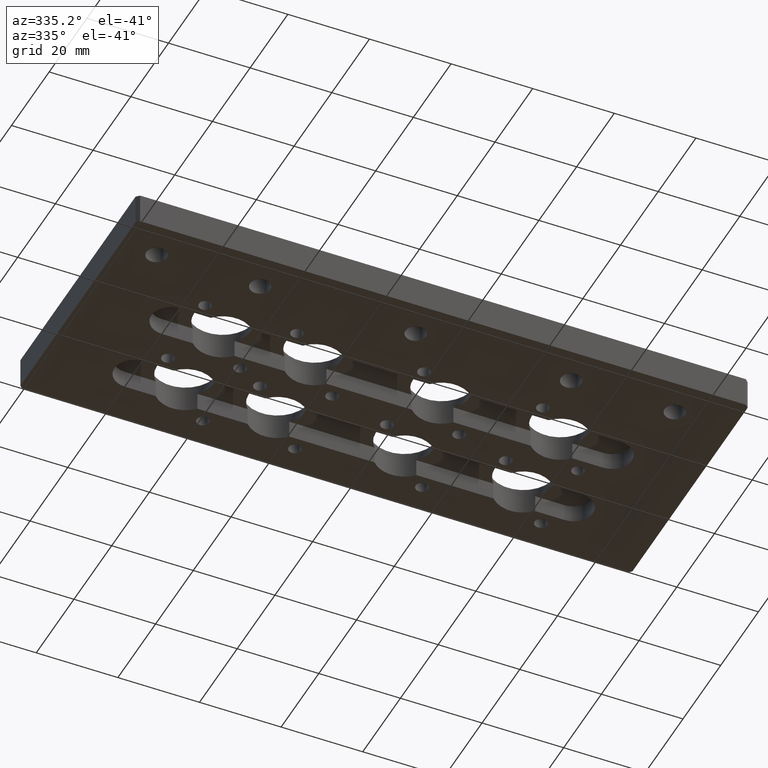
[diagram: clean part render]
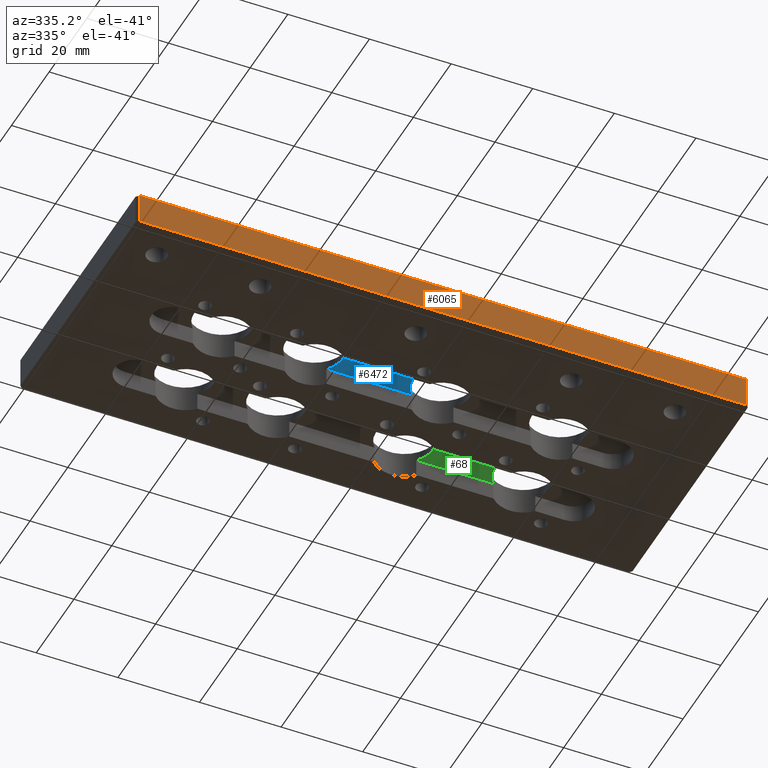
[diagram: same view with three faces highlighted in distinct colors, each labeled with its STEP entity id]
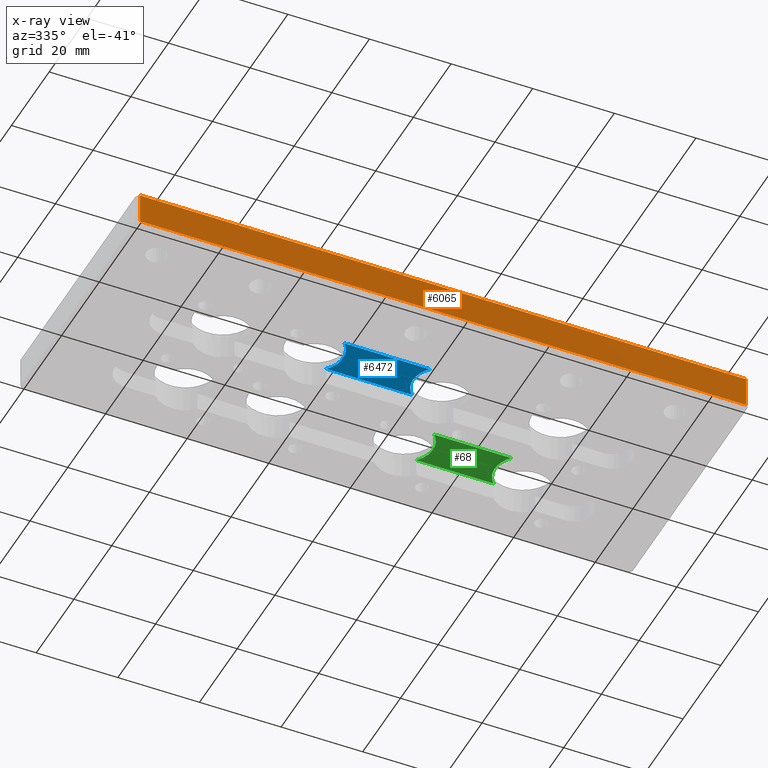
[diagram: x-ray of the same camera — body ghosted, the three highlighted faces saturated]
A machine part, auxiliary view with three faces highlighted in distinct colors.
The next image is the same camera in x-ray (body ghosted, the three faces saturated) — at least one of them is partly hidden behind the body in this view.
Their STEP definitions:

[orange] entity #6065 — the highlighted planar face has unit normal (-0, -1, 0).
#18 = CARTESIAN_POINT ( 'NONE',  ( 5.874993993654027400, -2.903011691320257200E-017, 0.0000000000000000000 ) ) ;
#383 = DIRECTION ( 'NONE',  ( -1.000000000000000000, 9.933316309051350500E-018, 0.0000000000000000000 ) ) ;
#646 = FACE_OUTER_BOUND ( 'NONE', #6373, .T. ) ;
#709 = VERTEX_POINT ( 'NONE', #6039 ) ;
#725 = CARTESIAN_POINT ( 'NONE',  ( 0.02999399365402927900, -5.173394818196502000E-016, 0.2970000000000000400 ) ) ;
#839 = DIRECTION ( 'NONE',  ( 0.0000000000000000000, 0.0000000000000000000, 1.000000000000000000 ) ) ;
#1080 = LINE ( 'NONE', #4431, #5553 ) ;
#1577 = DIRECTION ( 'NONE',  ( 0.0000000000000000000, 0.0000000000000000000, -1.000000000000000000 ) ) ;
#1750 = EDGE_CURVE ( 'NONE', #2743, #709, #3675, .T. ) ;
#1758 = DIRECTION ( 'NONE',  ( -9.933316309051350500E-018, -1.000000000000000000, 0.0000000000000000000 ) ) ;
#1977 = VECTOR ( 'NONE', #839, 39.37007874015748100 ) ;
#2113 = ORIENTED_EDGE ( 'NONE', *, *, #7442, .T. ) ;
#2490 = VERTEX_POINT ( 'NONE', #4493 ) ;
#2554 = CARTESIAN_POINT ( 'NONE',  ( 5.874993993654027400, -2.903011691320257200E-017, 0.2970000000000000400 ) ) ;
#2567 = LINE ( 'NONE', #7378, #3946 ) ;
#2743 = VERTEX_POINT ( 'NONE', #18 ) ;
#2799 = AXIS2_PLACEMENT_3D ( 'NONE', #7538, #1758, #5821 ) ;
#2859 = PLANE ( 'NONE',  #2799 ) ;
#3675 = LINE ( 'NONE', #3849, #5259 ) ;
#3849 = CARTESIAN_POINT ( 'NONE',  ( 5.904993993654027700, -2.932811640247411800E-017, -0.0000000000000000000 ) ) ;
#3946 = VECTOR ( 'NONE', #1577, 39.37007874015748100 ) ;
#4431 = CARTESIAN_POINT ( 'NONE',  ( 5.904993993654027700, -2.932811640247411800E-017, 0.2970000000000000400 ) ) ;
#4449 = DIRECTION ( 'NONE',  ( -1.000000000000000000, 9.933316309051350500E-018, 0.0000000000000000000 ) ) ;
#4493 = CARTESIAN_POINT ( 'NONE',  ( 5.874993993654027400, -3.372336466205313500E-017, 0.2970000000000000400 ) ) ;
#4675 = ORIENTED_EDGE ( 'NONE', *, *, #1750, .F. ) ;
#4718 = EDGE_CURVE ( 'NONE', #2743, #2490, #6613, .T. ) ;
#4936 = VERTEX_POINT ( 'NONE', #725 ) ;
#5219 = EDGE_CURVE ( 'NONE', #4936, #709, #2567, .T. ) ;
#5259 = VECTOR ( 'NONE', #4449, 39.37007874015748100 ) ;
#5553 = VECTOR ( 'NONE', #383, 39.37007874015748100 ) ;
#5821 = DIRECTION ( 'NONE',  ( 1.000000000000000000, -9.933316309051350500E-018, 0.0000000000000000000 ) ) ;
#5951 = ORIENTED_EDGE ( 'NONE', *, *, #5219, .T. ) ;
#6039 = CARTESIAN_POINT ( 'NONE',  ( 0.02999399365402927900, -5.179818746834250400E-016, 0.0000000000000000000 ) ) ;
#6065 = ADVANCED_FACE ( 'NONE', ( #646 ), #2859, .T. ) ;
#6373 = EDGE_LOOP ( 'NONE', ( #2113, #5951, #4675, #6427 ) ) ;
#6427 = ORIENTED_EDGE ( 'NONE', *, *, #4718, .T. ) ;
#6613 = LINE ( 'NONE', #2554, #1977 ) ;
#7378 = CARTESIAN_POINT ( 'NONE',  ( 0.02999399365402763800, 2.903011691320256500E-017, 0.2970000000000000400 ) ) ;
#7442 = EDGE_CURVE ( 'NONE', #2490, #4936, #1080, .T. ) ;
#7538 = CARTESIAN_POINT ( 'NONE',  ( 5.904993993654027700, -2.932811640247411800E-017, 0.2970000000000000400 ) ) ;

[blue] entity #6472 — the highlighted planar face has unit normal (0, 0, 1).
#100 = ORIENTED_EDGE ( 'NONE', *, *, #3492, .T. ) ;
#102 = VECTOR ( 'NONE', #1905, 39.37007874015748100 ) ;
#164 = DIRECTION ( 'NONE',  ( -0.0000000000000000000, -0.0000000000000000000, -1.000000000000000000 ) ) ;
#291 = AXIS2_PLACEMENT_3D ( 'NONE', #2079, #6150, #2642 ) ;
#323 = CARTESIAN_POINT ( 'NONE',  ( 2.421700926048729200, 1.286189792927657600, 0.1720000000000002400 ) ) ;
#464 = VERTEX_POINT ( 'NONE', #599 ) ;
#599 = CARTESIAN_POINT ( 'NONE',  ( 3.244683648113988000, 0.9111897929276581200, 0.1720000000000002400 ) ) ;
#884 = FACE_OUTER_BOUND ( 'NONE', #6133, .T. ) ;
#965 = CARTESIAN_POINT ( 'NONE',  ( 2.421700926048729200, 0.9111897929276581200, 0.1720000000000002400 ) ) ;
#966 = VECTOR ( 'NONE', #1470, 39.37007874015748100 ) ;
#1090 = PLANE ( 'NONE',  #7216 ) ;
#1134 = VERTEX_POINT ( 'NONE', #965 ) ;
#1306 = AXIS2_PLACEMENT_3D ( 'NONE', #6443, #2906, #7013 ) ;
#1470 = DIRECTION ( 'NONE',  ( 1.000000000000000000, -0.0000000000000000000, 0.0000000000000000000 ) ) ;
#1681 = DIRECTION ( 'NONE',  ( 0.0000000000000000000, 0.0000000000000000000, 1.000000000000000000 ) ) ;
#1691 = EDGE_CURVE ( 'NONE', #3617, #4003, #5979, .T. ) ;
#1905 = DIRECTION ( 'NONE',  ( -1.000000000000000000, 0.0000000000000000000, 0.0000000000000000000 ) ) ;
#1918 = CIRCLE ( 'NONE', #2935, 0.2750000000000001900 ) ;
#2013 = ORIENTED_EDGE ( 'NONE', *, *, #4058, .F. ) ;
#2079 = CARTESIAN_POINT ( 'NONE',  ( 3.445852109856876000, 1.098689792927658700, 0.1720000000000000400 ) ) ;
#2103 = VERTEX_POINT ( 'NONE', #6687 ) ;
#2486 = ORIENTED_EDGE ( 'NONE', *, *, #1691, .T. ) ;
#2642 = DIRECTION ( 'NONE',  ( 1.000000000000000000, 3.476897446481786700E-015, 0.0000000000000000000 ) ) ;
#2689 = CARTESIAN_POINT ( 'NONE',  ( 2.220532464305840400, 1.098689792927657800, 0.1720000000000000400 ) ) ;
#2795 = CARTESIAN_POINT ( 'NONE',  ( 2.220532464305840400, 1.098689792927657800, 0.1720000000000000400 ) ) ;
#2906 = DIRECTION ( 'NONE',  ( -0.0000000000000000000, -0.0000000000000000000, -1.000000000000000000 ) ) ;
#2935 = AXIS2_PLACEMENT_3D ( 'NONE', #2689, #6778, #3263 ) ;
#3263 = DIRECTION ( 'NONE',  ( 1.000000000000000000, 9.933992704233677100E-016, 0.0000000000000000000 ) ) ;
#3492 = EDGE_CURVE ( 'NONE', #464, #1134, #6112, .T. ) ;
#3558 = CARTESIAN_POINT ( 'NONE',  ( 3.244683648113986200, 1.286189792927657600, 0.1720000000000002400 ) ) ;
#3615 = EDGE_CURVE ( 'NONE', #4446, #4003, #7019, .T. ) ;
#3617 = VERTEX_POINT ( 'NONE', #323 ) ;
#3627 = CARTESIAN_POINT ( 'NONE',  ( 2.220532464305840400, 1.098689792927657800, 0.1720000000000000400 ) ) ;
#3825 = ORIENTED_EDGE ( 'NONE', *, *, #3615, .F. ) ;
#3918 = EDGE_CURVE ( 'NONE', #464, #4446, #5388, .T. ) ;
#4003 = VERTEX_POINT ( 'NONE', #3558 ) ;
#4058 = EDGE_CURVE ( 'NONE', #2103, #1134, #7367, .T. ) ;
#4224 = DIRECTION ( 'NONE',  ( 1.000000000000000000, 0.0000000000000000000, 0.0000000000000000000 ) ) ;
#4446 = VERTEX_POINT ( 'NONE', #6938 ) ;
#5127 = ORIENTED_EDGE ( 'NONE', *, *, #5845, .F. ) ;
#5217 = ORIENTED_EDGE ( 'NONE', *, *, #3918, .F. ) ;
#5388 = CIRCLE ( 'NONE', #1306, 0.2750000000000001900 ) ;
#5762 = DIRECTION ( 'NONE',  ( 1.000000000000000000, 0.0000000000000000000, -0.0000000000000000000 ) ) ;
#5845 = EDGE_CURVE ( 'NONE', #3617, #2103, #1918, .T. ) ;
#5973 = CARTESIAN_POINT ( 'NONE',  ( 5.092991687952446600, 0.9111897929276581200, 0.1720000000000002400 ) ) ;
#5979 = LINE ( 'NONE', #7269, #966 ) ;
#5994 = AXIS2_PLACEMENT_3D ( 'NONE', #3627, #164, #4224 ) ;
#6112 = LINE ( 'NONE', #5973, #102 ) ;
#6133 = EDGE_LOOP ( 'NONE', ( #100, #2013, #5127, #2486, #3825, #5217 ) ) ;
#6150 = DIRECTION ( 'NONE',  ( -0.0000000000000000000, -0.0000000000000000000, -1.000000000000000000 ) ) ;
#6443 = CARTESIAN_POINT ( 'NONE',  ( 3.445852109856876000, 1.098689792927658700, 0.1720000000000000400 ) ) ;
#6472 = ADVANCED_FACE ( 'NONE', ( #884 ), #1090, .F. ) ;
#6687 = CARTESIAN_POINT ( 'NONE',  ( 2.495532464305840700, 1.098689792927657800, 0.1720000000000000400 ) ) ;
#6778 = DIRECTION ( 'NONE',  ( -0.0000000000000000000, -0.0000000000000000000, -1.000000000000000000 ) ) ;
#6938 = CARTESIAN_POINT ( 'NONE',  ( 3.170852109856875600, 1.098689792927658700, 0.1720000000000000400 ) ) ;
#7013 = DIRECTION ( 'NONE',  ( 1.000000000000000000, 1.986798540846735400E-015, 0.0000000000000000000 ) ) ;
#7019 = CIRCLE ( 'NONE', #291, 0.2750000000000001900 ) ;
#7216 = AXIS2_PLACEMENT_3D ( 'NONE', #2795, #1681, #5762 ) ;
#7269 = CARTESIAN_POINT ( 'NONE',  ( 5.092991687952446600, 1.286189792927657600, 0.1720000000000002400 ) ) ;
#7367 = CIRCLE ( 'NONE', #5994, 0.2750000000000001900 ) ;

[green] entity #68 — the highlighted planar face has unit normal (0, 0, 1).
#68 = ADVANCED_FACE ( 'NONE', ( #757 ), #4517, .F. ) ;
#256 = DIRECTION ( 'NONE',  ( -1.000000000000000000, 0.0000000000000000000, 0.0000000000000000000 ) ) ;
#356 = VERTEX_POINT ( 'NONE', #2246 ) ;
#374 = EDGE_CURVE ( 'NONE', #356, #2818, #1071, .T. ) ;
#377 = AXIS2_PLACEMENT_3D ( 'NONE', #6711, #7285, #4378 ) ;
#645 = AXIS2_PLACEMENT_3D ( 'NONE', #3202, #7307, #3811 ) ;
#757 = FACE_OUTER_BOUND ( 'NONE', #5844, .T. ) ;
#791 = DIRECTION ( 'NONE',  ( 1.000000000000000000, -0.0000000000000000000, 0.0000000000000000000 ) ) ;
#939 = EDGE_CURVE ( 'NONE', #2932, #4561, #1333, .T. ) ;
#1008 = CIRCLE ( 'NONE', #1064, 0.2749999999999996900 ) ;
#1064 = AXIS2_PLACEMENT_3D ( 'NONE', #1507, #5603, #2105 ) ;
#1071 = CIRCLE ( 'NONE', #7002, 0.2750000000000001900 ) ;
#1239 = DIRECTION ( 'NONE',  ( -0.0000000000000000000, -0.0000000000000000000, -1.000000000000000000 ) ) ;
#1333 = LINE ( 'NONE', #6216, #7339 ) ;
#1412 = CARTESIAN_POINT ( 'NONE',  ( 5.077993993654026800, 1.687000000000000300, 0.1720000000000002400 ) ) ;
#1507 = CARTESIAN_POINT ( 'NONE',  ( 4.592991687952467900, 1.875000000000000000, 0.1720000000000000400 ) ) ;
#1686 = CARTESIAN_POINT ( 'NONE',  ( 3.445852109856896800, 1.875000000000000000, 0.1720000000000000400 ) ) ;
#2105 = DIRECTION ( 'NONE',  ( 1.000000000000000000, 0.0000000000000000000, 0.0000000000000000000 ) ) ;
#2246 = CARTESIAN_POINT ( 'NONE',  ( 3.720852109856896700, 1.875000000000000000, 0.1720000000000000400 ) ) ;
#2264 = DIRECTION ( 'NONE',  ( 1.000000000000000000, 0.0000000000000000000, 0.0000000000000000000 ) ) ;
#2365 = CARTESIAN_POINT ( 'NONE',  ( 4.391358357374411300, 2.061999999999999800, 0.1720000000000002400 ) ) ;
#2660 = ORIENTED_EDGE ( 'NONE', *, *, #5101, .T. ) ;
#2818 = VERTEX_POINT ( 'NONE', #7060 ) ;
#2932 = VERTEX_POINT ( 'NONE', #3629 ) ;
#2936 = CARTESIAN_POINT ( 'NONE',  ( 4.392290417403425600, 1.687000000000000300, 0.1720000000000002400 ) ) ;
#2967 = ORIENTED_EDGE ( 'NONE', *, *, #5452, .F. ) ;
#3014 = VECTOR ( 'NONE', #256, 39.37007874015748100 ) ;
#3202 = CARTESIAN_POINT ( 'NONE',  ( 3.445852109856896800, 1.875000000000000000, 0.1720000000000000400 ) ) ;
#3373 = CARTESIAN_POINT ( 'NONE',  ( 4.317991687952468500, 1.875000000000000000, 0.1720000000000000400 ) ) ;
#3436 = ORIENTED_EDGE ( 'NONE', *, *, #939, .T. ) ;
#3629 = CARTESIAN_POINT ( 'NONE',  ( 3.647485440434953500, 2.061999999999999800, 0.1720000000000002400 ) ) ;
#3636 = EDGE_CURVE ( 'NONE', #5960, #4561, #1008, .T. ) ;
#3760 = ORIENTED_EDGE ( 'NONE', *, *, #374, .F. ) ;
#3811 = DIRECTION ( 'NONE',  ( 1.000000000000000000, 0.0000000000000000000, 0.0000000000000000000 ) ) ;
#3994 = CIRCLE ( 'NONE', #645, 0.2750000000000001900 ) ;
#4378 = DIRECTION ( 'NONE',  ( 1.000000000000000000, 0.0000000000000000000, -0.0000000000000000000 ) ) ;
#4517 = PLANE ( 'NONE',  #377 ) ;
#4561 = VERTEX_POINT ( 'NONE', #2365 ) ;
#4745 = CARTESIAN_POINT ( 'NONE',  ( 4.592991687952467900, 1.875000000000000000, 0.1720000000000000400 ) ) ;
#5060 = CIRCLE ( 'NONE', #6539, 0.2749999999999996900 ) ;
#5101 = EDGE_CURVE ( 'NONE', #6579, #2818, #6352, .T. ) ;
#5331 = DIRECTION ( 'NONE',  ( 1.000000000000000000, 0.0000000000000000000, 0.0000000000000000000 ) ) ;
#5452 = EDGE_CURVE ( 'NONE', #6579, #5960, #5060, .T. ) ;
#5603 = DIRECTION ( 'NONE',  ( -0.0000000000000000000, -0.0000000000000000000, -1.000000000000000000 ) ) ;
#5768 = DIRECTION ( 'NONE',  ( -0.0000000000000000000, -0.0000000000000000000, -1.000000000000000000 ) ) ;
#5802 = EDGE_CURVE ( 'NONE', #2932, #356, #3994, .T. ) ;
#5844 = EDGE_LOOP ( 'NONE', ( #2660, #3760, #6877, #3436, #6569, #2967 ) ) ;
#5960 = VERTEX_POINT ( 'NONE', #3373 ) ;
#6216 = CARTESIAN_POINT ( 'NONE',  ( 5.077993993654026800, 2.061999999999999800, 0.1720000000000002400 ) ) ;
#6352 = LINE ( 'NONE', #1412, #3014 ) ;
#6539 = AXIS2_PLACEMENT_3D ( 'NONE', #4745, #1239, #5331 ) ;
#6569 = ORIENTED_EDGE ( 'NONE', *, *, #3636, .F. ) ;
#6579 = VERTEX_POINT ( 'NONE', #2936 ) ;
#6711 = CARTESIAN_POINT ( 'NONE',  ( 2.220532464305840400, 1.098689792927657800, 0.1720000000000000400 ) ) ;
#6877 = ORIENTED_EDGE ( 'NONE', *, *, #5802, .F. ) ;
#7002 = AXIS2_PLACEMENT_3D ( 'NONE', #1686, #5768, #2264 ) ;
#7060 = CARTESIAN_POINT ( 'NONE',  ( 3.646553380405939100, 1.687000000000000300, 0.1720000000000002400 ) ) ;
#7285 = DIRECTION ( 'NONE',  ( 0.0000000000000000000, 0.0000000000000000000, 1.000000000000000000 ) ) ;
#7307 = DIRECTION ( 'NONE',  ( -0.0000000000000000000, -0.0000000000000000000, -1.000000000000000000 ) ) ;
#7339 = VECTOR ( 'NONE', #791, 39.37007874015748100 ) ;